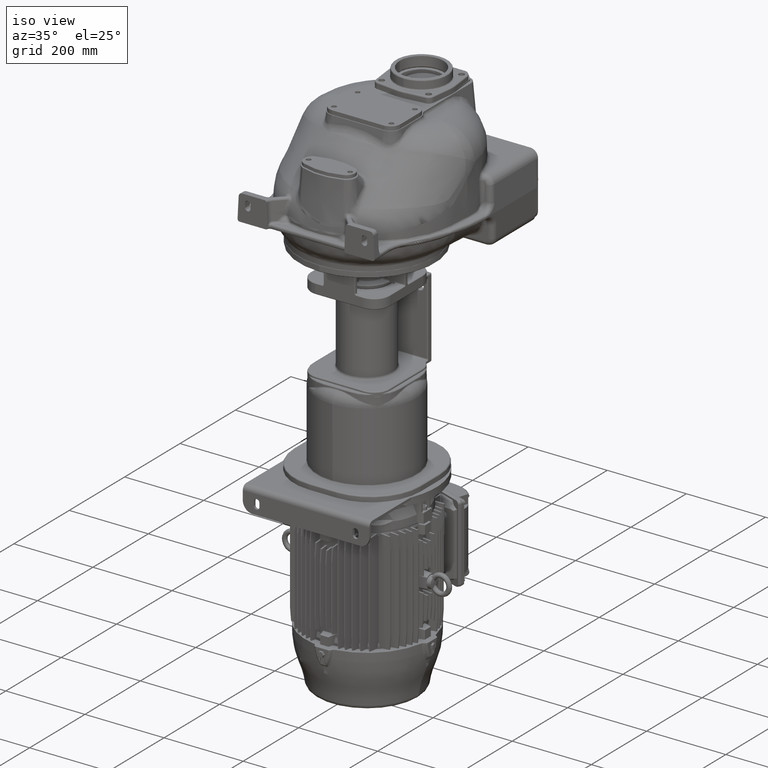
[diagram: clean part render]
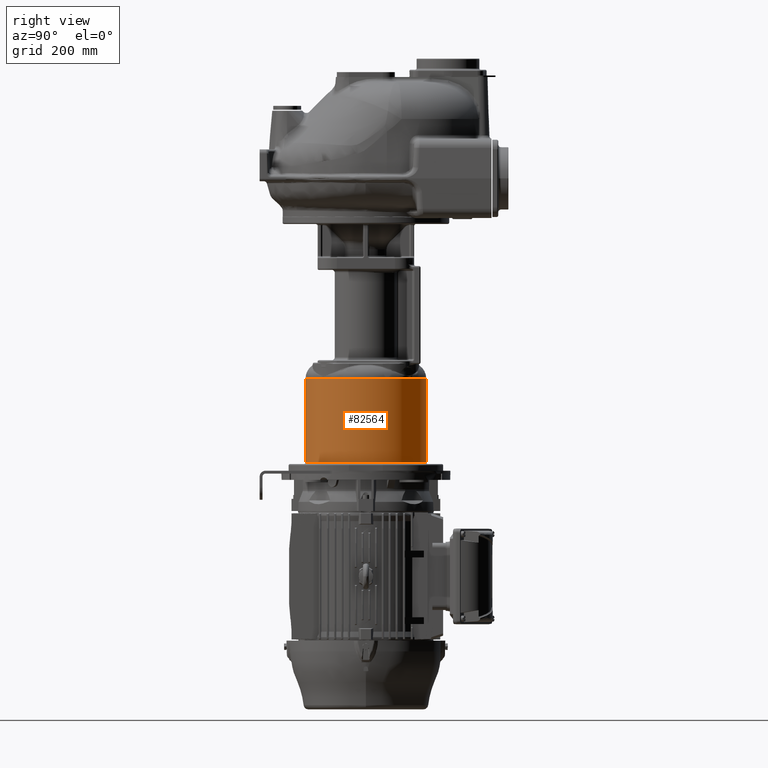
[diagram: tour spotlight — one face highlighted and labeled with its STEP entity id]
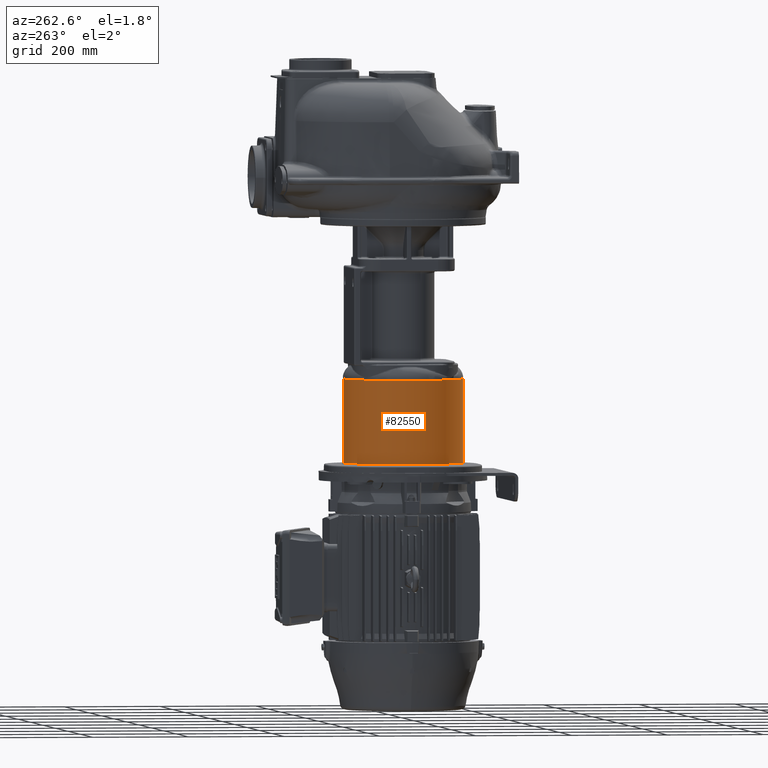
[diagram: tour spotlight — one face highlighted and labeled with its STEP entity id]
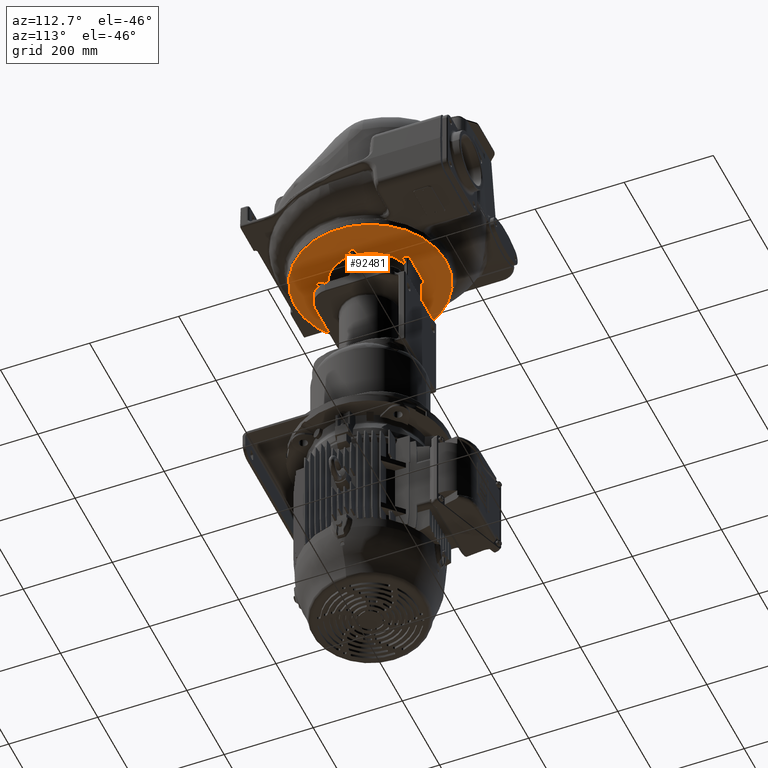
[diagram: tour spotlight — one face highlighted and labeled with its STEP entity id]
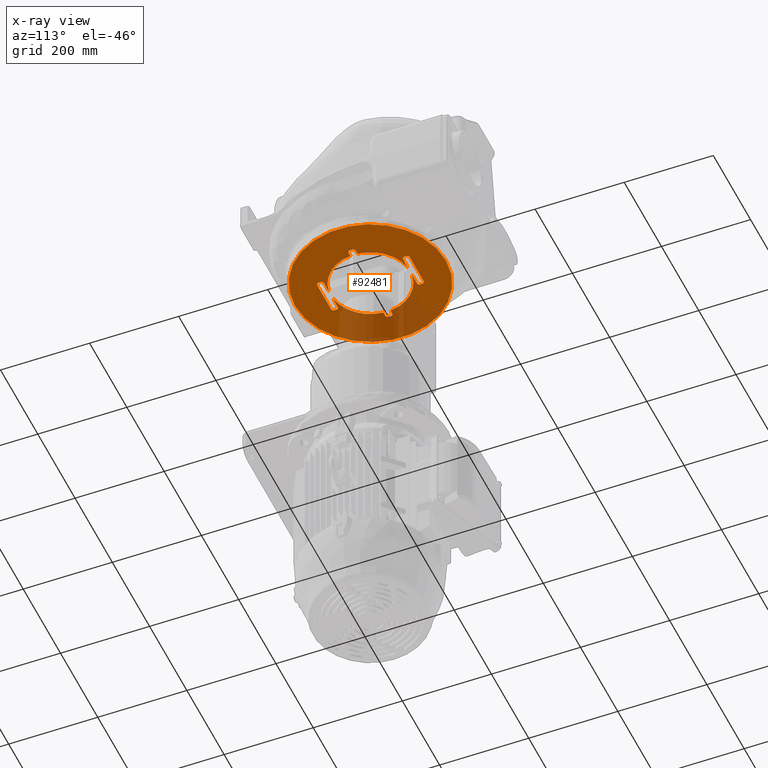
[diagram: x-ray of the same camera — body ghosted, this tour face saturated]
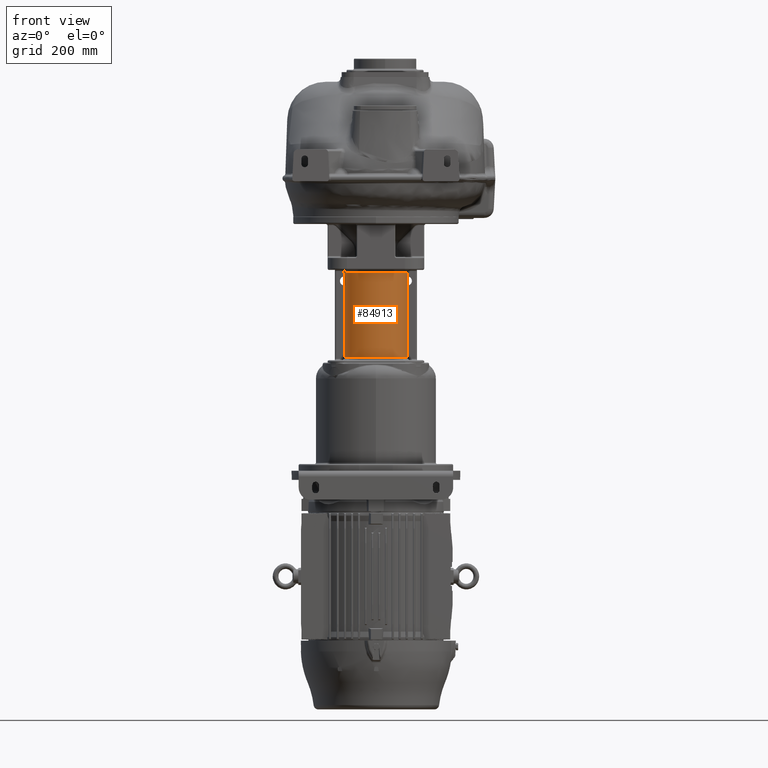
[diagram: tour spotlight — one face highlighted and labeled with its STEP entity id]
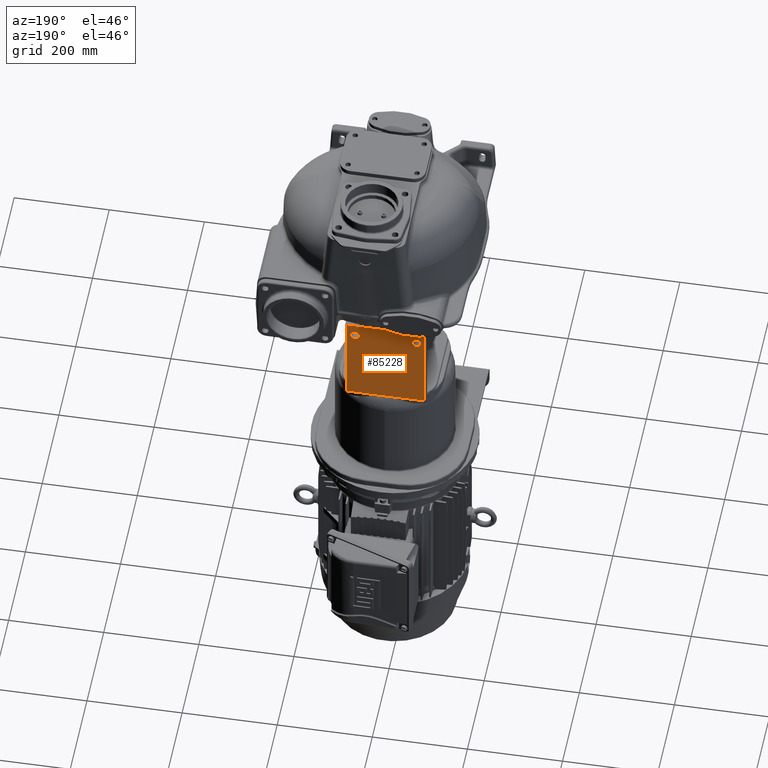
[diagram: tour spotlight — one face highlighted and labeled with its STEP entity id]
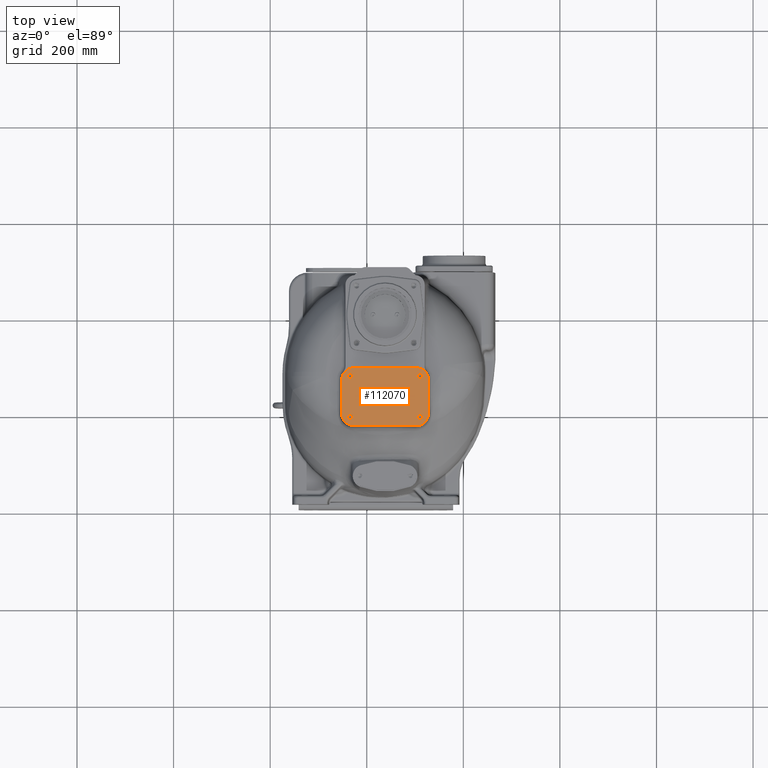
[diagram: tour spotlight — one face highlighted and labeled with its STEP entity id]
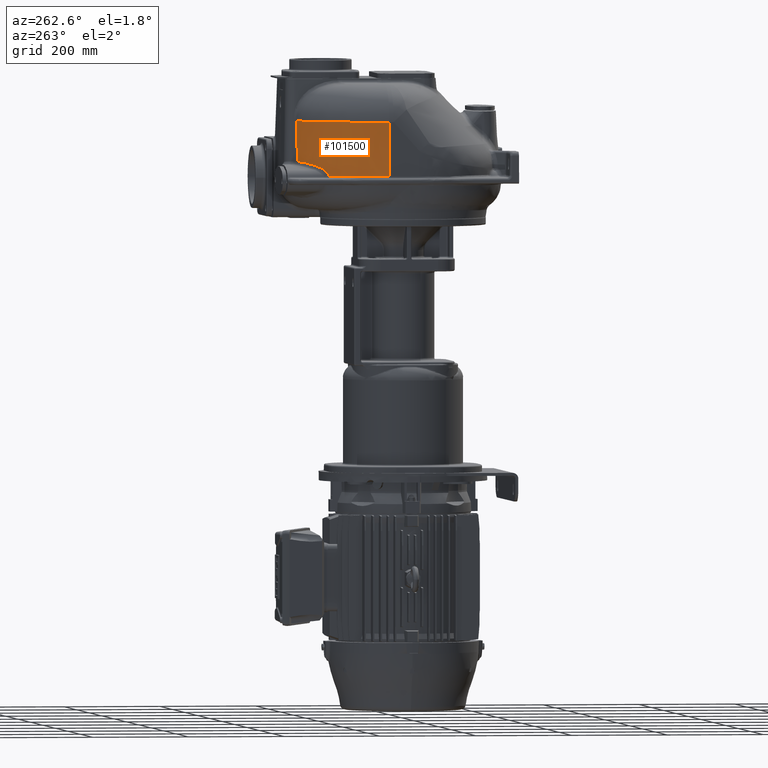
[diagram: tour spotlight — one face highlighted and labeled with its STEP entity id]
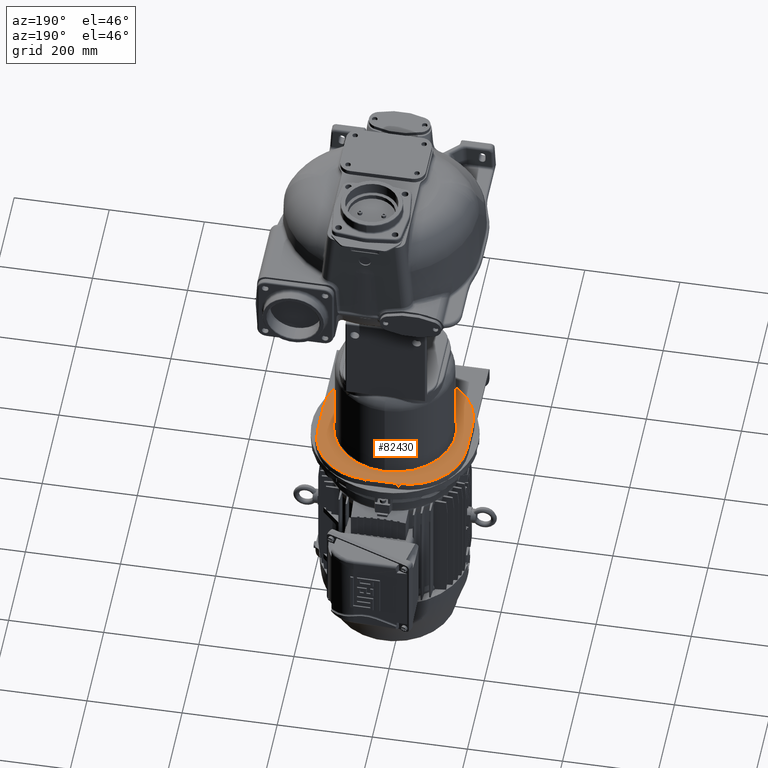
[diagram: tour spotlight — one face highlighted and labeled with its STEP entity id]
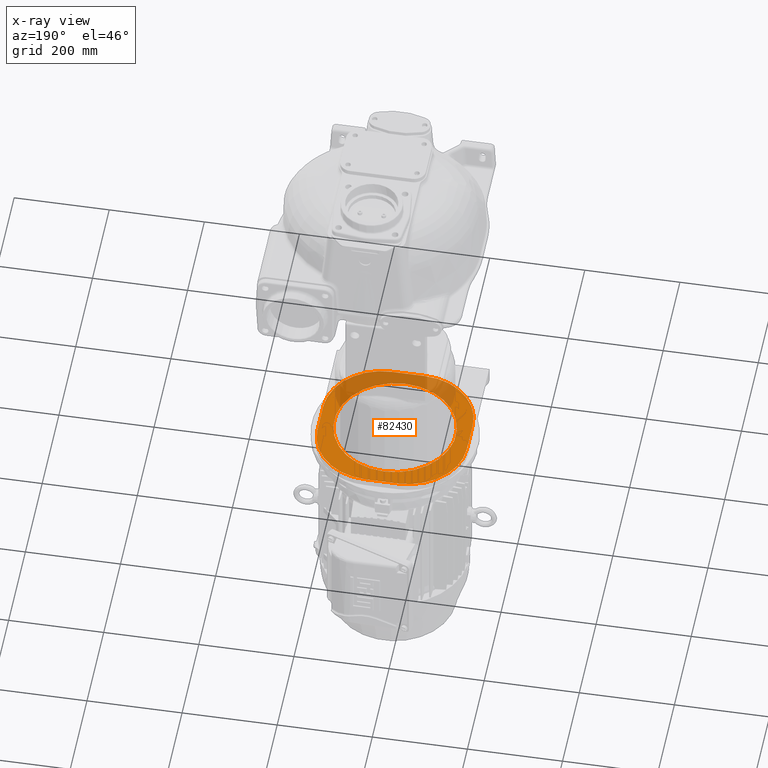
[diagram: x-ray of the same camera — body ghosted, this tour face saturated]
A machine part: a face-by-face anatomy tour. The part has 2953 B-rep faces; the first image is the clean iso view, then the 8 largest visible faces are spotlighted one at a time (largest first), each with its STEP entity span.

Face 1 — right view, entity #82564. In plain terms, the highlighted cylindrical surface (partial cylindrical patch) has radius 125 mm, axis along (0, 0, 1).
Definition (entity closure, byte-faithful):
#24245=DIRECTION('',(0.E0,0.E0,-1.E0));
#24246=VECTOR('',#24245,1.74E2);
#24247=CARTESIAN_POINT('',(1.9E1,9.5E1,-4.145E2));
#24248=LINE('',#24247,#24246);
#24259=CARTESIAN_POINT('',(1.9E1,2.2E2,-5.885E2));
#24260=DIRECTION('',(0.E0,0.E0,-1.E0));
#24261=DIRECTION('',(0.E0,1.E0,0.E0));
#24262=AXIS2_PLACEMENT_3D('',#24259,#24260,#24261);
#24264=CARTESIAN_POINT('',(1.9E1,2.2E2,-4.145E2));
#24265=DIRECTION('',(0.E0,0.E0,1.E0));
#24266=DIRECTION('',(0.E0,-1.E0,0.E0));
#24267=AXIS2_PLACEMENT_3D('',#24264,#24265,#24266);
#24269=DIRECTION('',(0.E0,0.E0,1.E0));
#24270=VECTOR('',#24269,1.74E2);
#24271=CARTESIAN_POINT('',(1.9E1,3.45E2,-5.885E2));
#24272=LINE('',#24271,#24270);
#42105=CARTESIAN_POINT('',(1.9E1,3.45E2,-5.885E2));
#42106=VERTEX_POINT('',#42105);
#42163=CARTESIAN_POINT('',(1.9E1,3.45E2,-4.145E2));
#42164=CARTESIAN_POINT('',(1.9E1,9.5E1,-4.145E2));
#42165=VERTEX_POINT('',#42163);
#42166=VERTEX_POINT('',#42164);
#42167=CARTESIAN_POINT('',(1.9E1,9.5E1,-5.885E2));
#42168=VERTEX_POINT('',#42167);
#82551=CARTESIAN_POINT('',(1.9E1,2.2E2,-6.209E2));
#82552=DIRECTION('',(0.E0,0.E0,1.E0));
#82553=DIRECTION('',(0.E0,1.E0,0.E0));
#82554=AXIS2_PLACEMENT_3D('',#82551,#82552,#82553);
#82555=CYLINDRICAL_SURFACE('',#82554,1.25E2);
#82557=ORIENTED_EDGE('',*,*,#82556,.T.);
#82558=ORIENTED_EDGE('',*,*,#82541,.F.);
#82560=ORIENTED_EDGE('',*,*,#82559,.T.);
#82561=ORIENTED_EDGE('',*,*,#82544,.F.);
#82562=EDGE_LOOP('',(#82557,#82558,#82560,#82561));
#82563=FACE_OUTER_BOUND('',#82562,.F.);
#82564=ADVANCED_FACE('',(#82563),#82555,.T.);
#24263=CIRCLE('',#24262,1.25E2);
#24268=CIRCLE('',#24267,1.25E2);
#82541=EDGE_CURVE('',#42166,#42168,#24248,.T.);
#82544=EDGE_CURVE('',#42106,#42165,#24272,.T.);
#82556=EDGE_CURVE('',#42106,#42168,#24263,.T.);
#82559=EDGE_CURVE('',#42166,#42165,#24268,.T.);

Face 2 — auxiliary view, entity #82550. In plain terms, the highlighted cylindrical surface (partial cylindrical patch) has radius 125 mm, axis along (0, 0, 1).
Definition (entity closure, byte-faithful):
#24245=DIRECTION('',(0.E0,0.E0,-1.E0));
#24246=VECTOR('',#24245,1.74E2);
#24247=CARTESIAN_POINT('',(1.9E1,9.5E1,-4.145E2));
#24248=LINE('',#24247,#24246);
#24249=CARTESIAN_POINT('',(1.9E1,2.2E2,-5.885E2));
#24250=DIRECTION('',(0.E0,0.E0,-1.E0));
#24251=DIRECTION('',(0.E0,-1.E0,0.E0));
#24252=AXIS2_PLACEMENT_3D('',#24249,#24250,#24251);
#24254=CARTESIAN_POINT('',(1.9E1,2.2E2,-4.145E2));
#24255=DIRECTION('',(0.E0,0.E0,1.E0));
#24256=DIRECTION('',(0.E0,1.E0,0.E0));
#24257=AXIS2_PLACEMENT_3D('',#24254,#24255,#24256);
#24269=DIRECTION('',(0.E0,0.E0,1.E0));
#24270=VECTOR('',#24269,1.74E2);
#24271=CARTESIAN_POINT('',(1.9E1,3.45E2,-5.885E2));
#24272=LINE('',#24271,#24270);
#42105=CARTESIAN_POINT('',(1.9E1,3.45E2,-5.885E2));
#42106=VERTEX_POINT('',#42105);
#42163=CARTESIAN_POINT('',(1.9E1,3.45E2,-4.145E2));
#42164=CARTESIAN_POINT('',(1.9E1,9.5E1,-4.145E2));
#42165=VERTEX_POINT('',#42163);
#42166=VERTEX_POINT('',#42164);
#42167=CARTESIAN_POINT('',(1.9E1,9.5E1,-5.885E2));
#42168=VERTEX_POINT('',#42167);
#82536=CARTESIAN_POINT('',(1.9E1,2.2E2,-6.209E2));
#82537=DIRECTION('',(0.E0,0.E0,1.E0));
#82538=DIRECTION('',(0.E0,1.E0,0.E0));
#82539=AXIS2_PLACEMENT_3D('',#82536,#82537,#82538);
#82540=CYLINDRICAL_SURFACE('',#82539,1.25E2);
#82542=ORIENTED_EDGE('',*,*,#82541,.T.);
#82543=ORIENTED_EDGE('',*,*,#82526,.T.);
#82545=ORIENTED_EDGE('',*,*,#82544,.T.);
#82547=ORIENTED_EDGE('',*,*,#82546,.T.);
#82548=EDGE_LOOP('',(#82542,#82543,#82545,#82547));
#82549=FACE_OUTER_BOUND('',#82548,.F.);
#82550=ADVANCED_FACE('',(#82549),#82540,.T.);
#24253=CIRCLE('',#24252,1.25E2);
#24258=CIRCLE('',#24257,1.25E2);
#82526=EDGE_CURVE('',#42168,#42106,#24253,.T.);
#82541=EDGE_CURVE('',#42166,#42168,#24248,.T.);
#82544=EDGE_CURVE('',#42106,#42165,#24272,.T.);
#82546=EDGE_CURVE('',#42165,#42166,#24258,.T.);

Face 3 — auxiliary view, entity #92481. An x-ray twin of the same camera follows (body ghosted, this face saturated) — the face is partly hidden behind the body. In plain terms, the highlighted planar face has unit normal (0, 0, -1).
Definition (entity closure, byte-faithful):
#26903=CARTESIAN_POINT('',(1.23E2,2.23E2,-9.450000025830E1));
#26904=CARTESIAN_POINT('',(1.229999996273E2,2.234606043981E2,
-9.450000110772E1));
#26905=CARTESIAN_POINT('',(1.228466955805E2,2.243737201377E2,
-9.449999948166E1));
#26906=CARTESIAN_POINT('',(1.220636472387E2,2.258355061609E2,
-9.450000015261E1));
#26907=CARTESIAN_POINT('',(1.207645786039E2,2.270420026033E2,
-9.449999990789E1));
#26908=CARTESIAN_POINT('',(1.190927926250E2,2.278256375356E2,
-9.450000021583E1));
#26909=CARTESIAN_POINT('',(1.177380951153E2,2.280000018019E2,
-9.449999955780E1));
#26910=CARTESIAN_POINT('',(1.17E2,2.28E2,-9.450000001253E1));
#26926=DIRECTION('',(0.E0,1.E0,-1.020490003611E-8));
#26927=VECTOR('',#26926,6.000000000004E0);
#26928=CARTESIAN_POINT('',(1.23E2,2.17E2,-9.450000019707E1));
#26929=LINE('',#26928,#26927);
#26935=CARTESIAN_POINT('',(1.17E2,2.12E2,-9.449999999950E1));
#26936=CARTESIAN_POINT('',(1.177382236731E2,2.119999999239E2,
-9.450000156859E1));
#26937=CARTESIAN_POINT('',(1.190930987344E2,2.121744329910E2,
-9.449999924330E1));
#26938=CARTESIAN_POINT('',(1.207648550828E2,2.129581868893E2,
-9.450000029555E1));
#26939=CARTESIAN_POINT('',(1.220637727012E2,2.141646926545E2,
-9.449999957449E1));
#26940=CARTESIAN_POINT('',(1.228466652585E2,2.156262502605E2,
-9.450000140650E1));
#26941=CARTESIAN_POINT('',(1.230000023533E2,2.165393767790E2,
-9.449999700184E1));
#26942=CARTESIAN_POINT('',(1.23E2,2.17E2,-9.450000019707E1));
#27064=CARTESIAN_POINT('',(5.700000000001E1,1.16E2,-9.450000019666E1));
#27065=CARTESIAN_POINT('',(5.746062316057E1,1.159999976473E2,
-9.449999700572E1));
#27066=CARTESIAN_POINT('',(5.837374958282E1,1.161533346992E2,
-9.450000140465E1));
#27067=CARTESIAN_POINT('',(5.983530715676E1,1.169362271532E2,
-9.449999957516E1));
#27068=CARTESIAN_POINT('',(6.104181289181E1,1.182351446570E2,
-9.450000029470E1));
#27069=CARTESIAN_POINT('',(6.182556681466E1,1.199069005683E2,
-9.449999924603E1));
#27070=CARTESIAN_POINT('',(6.200000007647E1,1.212617760292E2,
-9.450000156280E1));
#27071=CARTESIAN_POINT('',(6.2E1,1.22E2,-9.449999999952E1));
#27092=CARTESIAN_POINT('',(-2.4E1,1.22E2,-9.450000001268E1));
#27093=CARTESIAN_POINT('',(-2.400000180242E1,1.212619049131E2,
-9.449999956122E1));
#27094=CARTESIAN_POINT('',(-2.382563755235E1,1.199072074520E2,
-9.450000021424E1));
#27095=CARTESIAN_POINT('',(-2.304200266575E1,1.182354215124E2,
-9.449999990833E1));
#27096=CARTESIAN_POINT('',(-2.183550635717E1,1.169363529117E2,
-9.450000015242E1));
#27097=CARTESIAN_POINT('',(-2.037372022364E1,1.161533044321E2,
-9.449999948198E1));
#27098=CARTESIAN_POINT('',(-1.946060443322E1,1.160000003725E2,
-9.450000110709E1));
#27099=CARTESIAN_POINT('',(-1.9E1,1.16E2,-9.450000025886E1));
#27120=CARTESIAN_POINT('',(-1.9E1,1.26E2,-9.45E1));
#27121=DIRECTION('',(0.E0,0.E0,1.E0));
#27122=DIRECTION('',(0.E0,1.E0,0.E0));
#27123=AXIS2_PLACEMENT_3D('',#27120,#27121,#27122);
#27321=CARTESIAN_POINT('',(-8.5E1,2.17E2,-9.450000025830E1));
#27322=CARTESIAN_POINT('',(-8.499999962728E1,2.165393956019E2,
-9.450000110772E1));
#27323=CARTESIAN_POINT('',(-8.484669558049E1,2.156262798623E2,
-9.449999948166E1));
#27324=CARTESIAN_POINT('',(-8.406364723868E1,2.141644938391E2,
-9.450000015261E1));
#27325=CARTESIAN_POINT('',(-8.276457860392E1,2.129579973967E2,
-9.449999990789E1));
#27326=CARTESIAN_POINT('',(-8.109279262505E1,2.121743624644E2,
-9.450000021583E1));
#27327=CARTESIAN_POINT('',(-7.973809511529E1,2.119999981981E2,
-9.449999955780E1));
#27328=CARTESIAN_POINT('',(-7.9E1,2.12E2,-9.450000001253E1));
#27344=DIRECTION('',(0.E0,-1.E0,-1.020490240458E-8));
#27345=VECTOR('',#27344,6.000000000004E0);
#27346=CARTESIAN_POINT('',(-8.5E1,2.23E2,-9.450000019707E1));
#27347=LINE('',#27346,#27345);
#27353=CARTESIAN_POINT('',(-7.9E1,2.28E2,-9.449999999950E1));
#27354=CARTESIAN_POINT('',(-7.973822367314E1,2.280000000761E2,
-9.450000156859E1));
#27355=CARTESIAN_POINT('',(-8.109309873435E1,2.278255670090E2,
-9.449999924330E1));
#27356=CARTESIAN_POINT('',(-8.276485508279E1,2.270418131107E2,
-9.450000029555E1));
#27357=CARTESIAN_POINT('',(-8.406377270123E1,2.258353073455E2,
-9.449999957449E1));
#27358=CARTESIAN_POINT('',(-8.484666525848E1,2.243737497395E2,
-9.450000140650E1));
#27359=CARTESIAN_POINT('',(-8.500000235325E1,2.234606232210E2,
-9.449999700184E1));
#27360=CARTESIAN_POINT('',(-8.5E1,2.23E2,-9.450000019707E1));
#27482=CARTESIAN_POINT('',(-1.900000000001E1,3.24E2,-9.450000019666E1));
#27483=CARTESIAN_POINT('',(-1.946062316058E1,3.240000023527E2,
-9.449999700572E1));
#27484=CARTESIAN_POINT('',(-2.037374958283E1,3.238466653008E2,
-9.450000140465E1));
#27485=CARTESIAN_POINT('',(-2.183530715677E1,3.230637728468E2,
-9.449999957516E1));
#27486=CARTESIAN_POINT('',(-2.304181289182E1,3.217648553430E2,
-9.450000029470E1));
#27487=CARTESIAN_POINT('',(-2.382556681466E1,3.200930994317E2,
-9.449999924603E1));
#27488=CARTESIAN_POINT('',(-2.400000007647E1,3.187382239708E2,
-9.450000156280E1));
#27489=CARTESIAN_POINT('',(-2.4E1,3.18E2,-9.449999999952E1));
#27510=CARTESIAN_POINT('',(6.2E1,3.18E2,-9.450000001268E1));
#27511=CARTESIAN_POINT('',(6.200000180242E1,3.187380950869E2,
-9.449999956122E1));
#27512=CARTESIAN_POINT('',(6.182563755235E1,3.200927925480E2,
-9.450000021424E1));
#27513=CARTESIAN_POINT('',(6.104200266576E1,3.217645784876E2,
-9.449999990833E1));
#27514=CARTESIAN_POINT('',(5.983550635719E1,3.230636470883E2,
-9.450000015242E1));
#27515=CARTESIAN_POINT('',(5.837372022365E1,3.238466955679E2,
-9.449999948198E1));
#27516=CARTESIAN_POINT('',(5.746060443322E1,3.239999996275E2,
-9.450000110709E1));
#27517=CARTESIAN_POINT('',(5.7E1,3.24E2,-9.450000025886E1));
#27538=CARTESIAN_POINT('',(5.7E1,3.14E2,-9.45E1));
#27539=DIRECTION('',(0.E0,0.E0,1.E0));
#27540=DIRECTION('',(0.E0,-1.E0,0.E0));
#27541=AXIS2_PLACEMENT_3D('',#27538,#27539,#27540);
#27578=CARTESIAN_POINT('',(1.075953847673E2,2.28E2,-9.450000062425E1));
#27580=CARTESIAN_POINT('',(3.2E1,3.080008079577E2,-9.450000060055E1));
#28108=CARTESIAN_POINT('',(-1.9E1,3.14E2,-9.45E1));
#28109=DIRECTION('',(0.E0,0.E0,1.E0));
#28110=DIRECTION('',(-1.E0,0.E0,0.E0));
#28111=AXIS2_PLACEMENT_3D('',#28108,#28109,#28110);
#28118=CARTESIAN_POINT('',(1.9E1,2.2E2,-9.45E1));
#28119=DIRECTION('',(0.E0,0.E0,1.E0));
#28120=DIRECTION('',(0.E0,1.E0,0.E0));
#28121=AXIS2_PLACEMENT_3D('',#28118,#28119,#28120);
#28123=CARTESIAN_POINT('',(1.9E1,2.2E2,-9.45E1));
#28124=DIRECTION('',(0.E0,0.E0,1.E0));
#28125=DIRECTION('',(0.E0,-1.E0,0.E0));
#28126=AXIS2_PLACEMENT_3D('',#28123,#28124,#28125);
#28128=DIRECTION('',(0.E0,-1.E0,3.169020601490E-9));
#28129=VECTOR('',#28128,4.E0);
#28130=CARTESIAN_POINT('',(6.2E1,3.18E2,-9.450000001268E1));
#28131=LINE('',#28130,#28129);
#28132=DIRECTION('',(-1.E0,-4.456524038687E-12,0.E0));
#28133=VECTOR('',#28132,2.5E1);
#28134=CARTESIAN_POINT('',(5.7E1,3.09E2,-9.45E1));
#28135=LINE('',#28134,#28133);
#28136=DIRECTION('',(-1.422234577096E-14,-9.999999999998E-1,
-6.010330469188E-7));
#28137=VECTOR('',#28136,9.991920421609E-1);
#28138=CARTESIAN_POINT('',(3.2E1,3.089999999999E2,-9.45E1));
#28139=LINE('',#28138,#28137);
#28140=CARTESIAN_POINT('',(1.9E1,2.2E2,-9.45E1));
#28141=DIRECTION('',(0.E0,0.E0,1.E0));
#28142=DIRECTION('',(9.959478845862E-1,8.993225888606E-2,0.E0));
#28143=AXIS2_PLACEMENT_3D('',#28140,#28141,#28142);
#28145=DIRECTION('',(1.E0,0.E0,6.504391323047E-8));
#28146=VECTOR('',#28145,9.404615232689E0);
#28147=CARTESIAN_POINT('',(1.075953847673E2,2.28E2,-9.450000062425E1));
#28148=LINE('',#28147,#28146);
#28149=DIRECTION('',(1.E0,0.E0,1.162008130140E-7));
#28150=VECTOR('',#28149,9.404615233640E0);
#28151=CARTESIAN_POINT('',(1.075953847664E2,2.12E2,-9.450000109233E1));
#28152=LINE('',#28151,#28150);
#28153=CARTESIAN_POINT('',(1.9E1,2.2E2,-9.45E1));
#28154=DIRECTION('',(0.E0,0.E0,1.E0));
#28155=DIRECTION('',(1.461399207220E-1,-9.892639301882E-1,0.E0));
#28156=AXIS2_PLACEMENT_3D('',#28153,#28154,#28155);
#28158=DIRECTION('',(0.E0,-9.999999999998E-1,6.010464300970E-7));
#28159=VECTOR('',#28158,9.991920422427E-1);
#28160=CARTESIAN_POINT('',(3.2E1,1.319991920424E2,-9.450000060056E1));
#28161=LINE('',#28160,#28159);
#28162=DIRECTION('',(1.E0,-4.455387170310E-12,0.E0));
#28163=VECTOR('',#28162,2.5E1);
#28164=CARTESIAN_POINT('',(3.2E1,1.310000000001E2,-9.45E1));
#28165=LINE('',#28164,#28163);
#28166=DIRECTION('',(0.E0,-1.E0,1.208420030707E-10));
#28167=VECTOR('',#28166,4.E0);
#28168=CARTESIAN_POINT('',(6.2E1,1.26E2,-9.45E1));
#28169=LINE('',#28168,#28167);
#28170=DIRECTION('',(-1.E0,0.E0,-8.184410809893E-10));
#28171=VECTOR('',#28170,7.6E1);
#28172=CARTESIAN_POINT('',(5.700000000001E1,1.16E2,-9.450000019666E1));
#28173=LINE('',#28172,#28171);
#28174=DIRECTION('',(0.E0,1.E0,3.169020601490E-9));
#28175=VECTOR('',#28174,4.E0);
#28176=CARTESIAN_POINT('',(-2.4E1,1.22E2,-9.450000001268E1));
#28177=LINE('',#28176,#28175);
#28178=DIRECTION('',(1.E0,4.455387170310E-12,0.E0));
#28179=VECTOR('',#28178,2.5E1);
#28180=CARTESIAN_POINT('',(-1.9E1,1.31E2,-9.45E1));
#28181=LINE('',#28180,#28179);
#28182=DIRECTION('',(0.E0,9.999999999998E-1,-6.010330326964E-7));
#28183=VECTOR('',#28182,9.991920421609E-1);
#28184=CARTESIAN_POINT('',(6.E0,1.310000000001E2,-9.45E1));
#28185=LINE('',#28184,#28183);
#28186=CARTESIAN_POINT('',(1.9E1,2.2E2,-9.45E1));
#28187=DIRECTION('',(0.E0,0.E0,-1.E0));
#28188=DIRECTION('',(-1.461399207214E-1,-9.892639301883E-1,0.E0));
#28189=AXIS2_PLACEMENT_3D('',#28186,#28187,#28188);
#28191=DIRECTION('',(-1.E0,0.E0,6.504391171942E-8));
#28192=VECTOR('',#28191,9.404615232689E0);
#28193=CARTESIAN_POINT('',(-6.959538476731E1,2.12E2,-9.450000062425E1));
#28194=LINE('',#28193,#28192);
#28195=DIRECTION('',(-1.E0,0.E0,1.162008130140E-7));
#28196=VECTOR('',#28195,9.404615233640E0);
#28197=CARTESIAN_POINT('',(-6.959538476636E1,2.28E2,-9.450000109233E1));
#28198=LINE('',#28197,#28196);
#28199=CARTESIAN_POINT('',(1.9E1,2.2E2,-9.45E1));
#28200=DIRECTION('',(0.E0,0.E0,-1.E0));
#28201=DIRECTION('',(-9.959478845858E-1,8.993225889006E-2,0.E0));
#28202=AXIS2_PLACEMENT_3D('',#28199,#28200,#28201);
#28204=DIRECTION('',(0.E0,9.999999999998E-1,6.010464443194E-7));
#28205=VECTOR('',#28204,9.991920422426E-1);
#28206=CARTESIAN_POINT('',(6.E0,3.080008079576E2,-9.450000060056E1));
#28207=LINE('',#28206,#28205);
#28208=DIRECTION('',(-1.E0,4.456524038687E-12,0.E0));
#28209=VECTOR('',#28208,2.5E1);
#28210=CARTESIAN_POINT('',(6.E0,3.089999999999E2,-9.45E1));
#28211=LINE('',#28210,#28209);
#28212=DIRECTION('',(0.E0,1.E0,1.208420030707E-10));
#28213=VECTOR('',#28212,4.E0);
#28214=CARTESIAN_POINT('',(-2.4E1,3.14E2,-9.45E1));
#28215=LINE('',#28214,#28213);
#28216=DIRECTION('',(1.E0,0.E0,-8.184418289291E-10));
#28217=VECTOR('',#28216,7.6E1);
#28218=CARTESIAN_POINT('',(-1.900000000001E1,3.24E2,-9.450000019666E1));
#28219=LINE('',#28218,#28217);
#37350=CARTESIAN_POINT('',(1.075953847664E2,2.12E2,-9.450000109233E1));
#37362=CARTESIAN_POINT('',(3.2E1,1.319991920424E2,-9.450000060056E1));
#37586=CARTESIAN_POINT('',(5.7E1,1.26E2,-9.45E1));
#37587=DIRECTION('',(0.E0,0.E0,1.E0));
#37588=DIRECTION('',(1.E0,0.E0,0.E0));
#37589=AXIS2_PLACEMENT_3D('',#37586,#37587,#37588);
#38178=CARTESIAN_POINT('',(-6.959538476731E1,2.12E2,-9.450000062425E1));
#38180=CARTESIAN_POINT('',(6.E0,1.319991920423E2,-9.450000060055E1));
#38428=CARTESIAN_POINT('',(-6.959538476636E1,2.28E2,-9.450000109233E1));
#38440=CARTESIAN_POINT('',(6.E0,3.080008079576E2,-9.450000060056E1));
#41323=CARTESIAN_POINT('',(1.9E1,3.895E2,-9.45E1));
#41324=CARTESIAN_POINT('',(1.9E1,5.05E1,-9.45E1));
#41325=VERTEX_POINT('',#41323);
#41326=VERTEX_POINT('',#41324);
#41390=VERTEX_POINT('',#38428);
#41421=VERTEX_POINT('',#38440);
#41436=VERTEX_POINT('',#27578);
#41471=VERTEX_POINT('',#27580);
#41488=VERTEX_POINT('',#37350);
#41521=VERTEX_POINT('',#37362);
#41536=VERTEX_POINT('',#38178);
#41567=VERTEX_POINT('',#38180);
#41606=CARTESIAN_POINT('',(-1.9E1,1.31E2,-9.45E1));
#41607=VERTEX_POINT('',#41606);
#41608=CARTESIAN_POINT('',(-2.4E1,1.26E2,-9.45E1));
#41609=VERTEX_POINT('',#41608);
#41622=CARTESIAN_POINT('',(5.7E1,3.09E2,-9.45E1));
#41623=VERTEX_POINT('',#41622);
#41624=CARTESIAN_POINT('',(6.2E1,3.14E2,-9.45E1));
#41625=VERTEX_POINT('',#41624);
#41638=CARTESIAN_POINT('',(6.2E1,1.26E2,-9.45E1));
#41639=VERTEX_POINT('',#41638);
#41640=CARTESIAN_POINT('',(5.7E1,1.31E2,-9.45E1));
#41641=VERTEX_POINT('',#41640);
#41675=CARTESIAN_POINT('',(1.169999992287E2,2.12E2,-9.45E1));
#41677=VERTEX_POINT('',#41675);
#41678=CARTESIAN_POINT('',(1.23E2,2.169999997396E2,-9.45E1));
#41679=VERTEX_POINT('',#41678);
#41680=CARTESIAN_POINT('',(5.700000025964E1,1.16E2,-9.45E1));
#41681=VERTEX_POINT('',#41680);
#41683=CARTESIAN_POINT('',(6.2E1,1.220000007717E2,-9.45E1));
#41685=VERTEX_POINT('',#41683);
#41714=CARTESIAN_POINT('',(1.23E2,2.229999999641E2,-9.45E1));
#41715=VERTEX_POINT('',#41714);
#41717=CARTESIAN_POINT('',(1.169999994244E2,2.28E2,-9.45E1));
#41719=VERTEX_POINT('',#41717);
#41721=CARTESIAN_POINT('',(6.2E1,3.179999994283E2,-9.45E1));
#41723=VERTEX_POINT('',#41721);
#41724=CARTESIAN_POINT('',(5.699999996620E1,3.24E2,-9.45E1));
#41725=VERTEX_POINT('',#41724);
#41734=CARTESIAN_POINT('',(-2.4E1,3.14E2,-9.45E1));
#41735=VERTEX_POINT('',#41734);
#41736=CARTESIAN_POINT('',(-1.9E1,3.09E2,-9.45E1));
#41737=VERTEX_POINT('',#41736);
#41771=CARTESIAN_POINT('',(-7.899999922869E1,2.28E2,-9.45E1));
#41773=VERTEX_POINT('',#41771);
#41774=CARTESIAN_POINT('',(-8.5E1,2.230000002604E2,-9.45E1));
#41775=VERTEX_POINT('',#41774);
#41776=CARTESIAN_POINT('',(-1.900000025964E1,3.24E2,-9.45E1));
#41777=VERTEX_POINT('',#41776);
#41779=CARTESIAN_POINT('',(-2.4E1,3.179999992283E2,-9.45E1));
#41781=VERTEX_POINT('',#41779);
#41810=CARTESIAN_POINT('',(-8.5E1,2.170000000359E2,-9.45E1));
#41811=VERTEX_POINT('',#41810);
#41813=CARTESIAN_POINT('',(-7.899999942441E1,2.12E2,-9.45E1));
#41815=VERTEX_POINT('',#41813);
#41817=CARTESIAN_POINT('',(-2.4E1,1.220000005717E2,-9.45E1));
#41819=VERTEX_POINT('',#41817);
#41820=CARTESIAN_POINT('',(-1.899999996620E1,1.16E2,-9.45E1));
#41821=VERTEX_POINT('',#41820);
#41837=CARTESIAN_POINT('',(6.E0,3.089999999999E2,-9.45E1));
#41838=VERTEX_POINT('',#41837);
#41839=CARTESIAN_POINT('',(3.2E1,3.089999999999E2,-9.45E1));
#41840=VERTEX_POINT('',#41839);
#41841=CARTESIAN_POINT('',(3.2E1,1.310000000001E2,-9.45E1));
#41842=VERTEX_POINT('',#41841);
#41843=CARTESIAN_POINT('',(6.E0,1.310000000001E2,-9.45E1));
#41844=VERTEX_POINT('',#41843);
#92420=CARTESIAN_POINT('',(1.9E1,2.2E2,-9.45E1));
#92421=DIRECTION('',(0.E0,0.E0,-1.E0));
#92422=DIRECTION('',(0.E0,1.E0,0.E0));
#92423=AXIS2_PLACEMENT_3D('',#92420,#92421,#92422);
#92424=PLANE('',#92423);
#92426=ORIENTED_EDGE('',*,*,#92425,.T.);
#92428=ORIENTED_EDGE('',*,*,#92427,.T.);
#92429=EDGE_LOOP('',(#92426,#92428));
#92430=FACE_OUTER_BOUND('',#92429,.F.);
#92431=ORIENTED_EDGE('',*,*,#91230,.T.);
#92432=ORIENTED_EDGE('',*,*,#91244,.F.);
#92433=ORIENTED_EDGE('',*,*,#91260,.T.);
#92434=ORIENTED_EDGE('',*,*,#91284,.T.);
#92435=ORIENTED_EDGE('',*,*,#91356,.F.);
#92437=ORIENTED_EDGE('',*,*,#92436,.T.);
#92438=ORIENTED_EDGE('',*,*,#88989,.F.);
#92439=ORIENTED_EDGE('',*,*,#89004,.F.);
#92440=ORIENTED_EDGE('',*,*,#89206,.F.);
#92441=ORIENTED_EDGE('',*,*,#89224,.F.);
#92443=ORIENTED_EDGE('',*,*,#92442,.F.);
#92445=ORIENTED_EDGE('',*,*,#92444,.T.);
#92447=ORIENTED_EDGE('',*,*,#92446,.T.);
#92449=ORIENTED_EDGE('',*,*,#92448,.F.);
#92451=ORIENTED_EDGE('',*,*,#92450,.T.);
#92452=ORIENTED_EDGE('',*,*,#89552,.F.);
#92453=ORIENTED_EDGE('',*,*,#89569,.T.);
#92454=ORIENTED_EDGE('',*,*,#89769,.F.);
#92455=ORIENTED_EDGE('',*,*,#89784,.T.);
#92456=ORIENTED_EDGE('',*,*,#89799,.F.);
#92457=ORIENTED_EDGE('',*,*,#89817,.T.);
#92459=ORIENTED_EDGE('',*,*,#92458,.T.);
#92461=ORIENTED_EDGE('',*,*,#92460,.T.);
#92463=ORIENTED_EDGE('',*,*,#92462,.T.);
#92464=ORIENTED_EDGE('',*,*,#90435,.F.);
#92465=ORIENTED_EDGE('',*,*,#90450,.F.);
#92466=ORIENTED_EDGE('',*,*,#90652,.F.);
#92467=ORIENTED_EDGE('',*,*,#90670,.F.);
#92469=ORIENTED_EDGE('',*,*,#92468,.T.);
#92471=ORIENTED_EDGE('',*,*,#92470,.T.);
#92473=ORIENTED_EDGE('',*,*,#92472,.T.);
#92474=ORIENTED_EDGE('',*,*,#92412,.F.);
#92475=ORIENTED_EDGE('',*,*,#92401,.T.);
#92476=ORIENTED_EDGE('',*,*,#90998,.F.);
#92477=ORIENTED_EDGE('',*,*,#91013,.T.);
#92478=ORIENTED_EDGE('',*,*,#91215,.F.);
#92479=EDGE_LOOP('',(#92431,#92432,#92433,#92434,#92435,#92437,#92438,#92439,
#92440,#92441,#92443,#92445,#92447,#92449,#92451,#92452,#92453,#92454,#92455,
#92456,#92457,#92459,#92461,#92463,#92464,#92465,#92466,#92467,#92469,#92471,
#92473,#92474,#92475,#92476,#92477,#92478));
#92480=FACE_BOUND('',#92479,.F.);
#92481=ADVANCED_FACE('',(#92430,#92480),#92424,.T.);
#26911=B_SPLINE_CURVE_WITH_KNOTS('',3,(#26903,#26904,#26905,#26906,#26907,
#26908,#26909,#26910),.UNSPECIFIED.,.F.,.F.,(4,1,1,1,1,4),(0.E0,2.E-1,4.E-1,
6.E-1,8.E-1,1.E0),.UNSPECIFIED.);
#26943=B_SPLINE_CURVE_WITH_KNOTS('',3,(#26935,#26936,#26937,#26938,#26939,
#26940,#26941,#26942),.UNSPECIFIED.,.F.,.F.,(4,1,1,1,1,4),(0.E0,2.E-1,4.E-1,
6.E-1,8.E-1,1.E0),.UNSPECIFIED.);
#27072=B_SPLINE_CURVE_WITH_KNOTS('',3,(#27064,#27065,#27066,#27067,#27068,
#27069,#27070,#27071),.UNSPECIFIED.,.F.,.F.,(4,1,1,1,1,4),(0.E0,2.E-1,4.E-1,
6.E-1,8.E-1,1.E0),.UNSPECIFIED.);
#27100=B_SPLINE_CURVE_WITH_KNOTS('',3,(#27092,#27093,#27094,#27095,#27096,
#27097,#27098,#27099),.UNSPECIFIED.,.F.,.F.,(4,1,1,1,1,4),(0.E0,2.E-1,4.E-1,
6.E-1,8.E-1,1.E0),.UNSPECIFIED.);
#27124=CIRCLE('',#27123,5.E0);
#27329=B_SPLINE_CURVE_WITH_KNOTS('',3,(#27321,#27322,#27323,#27324,#27325,
#27326,#27327,#27328),.UNSPECIFIED.,.F.,.F.,(4,1,1,1,1,4),(0.E0,2.E-1,4.E-1,
6.E-1,8.E-1,1.E0),.UNSPECIFIED.);
#27361=B_SPLINE_CURVE_WITH_KNOTS('',3,(#27353,#27354,#27355,#27356,#27357,
#27358,#27359,#27360),.UNSPECIFIED.,.F.,.F.,(4,1,1,1,1,4),(0.E0,2.E-1,4.E-1,
6.E-1,8.E-1,1.E0),.UNSPECIFIED.);
#27490=B_SPLINE_CURVE_WITH_KNOTS('',3,(#27482,#27483,#27484,#27485,#27486,
#27487,#27488,#27489),.UNSPECIFIED.,.F.,.F.,(4,1,1,1,1,4),(0.E0,2.E-1,4.E-1,
6.E-1,8.E-1,1.E0),.UNSPECIFIED.);
#27518=B_SPLINE_CURVE_WITH_KNOTS('',3,(#27510,#27511,#27512,#27513,#27514,
#27515,#27516,#27517),.UNSPECIFIED.,.F.,.F.,(4,1,1,1,1,4),(0.E0,2.E-1,4.E-1,
6.E-1,8.E-1,1.E0),.UNSPECIFIED.);
#27542=CIRCLE('',#27541,5.E0);
#28112=CIRCLE('',#28111,5.E0);
#28122=CIRCLE('',#28121,1.695E2);
#28127=CIRCLE('',#28126,1.695E2);
#28144=CIRCLE('',#28143,8.895584412272E1);
#28157=CIRCLE('',#28156,8.895584412272E1);
#28190=CIRCLE('',#28189,8.895584412272E1);
#28203=CIRCLE('',#28202,8.895584412272E1);
#37590=CIRCLE('',#37589,5.E0);
#88989=EDGE_CURVE('',#41715,#41719,#26911,.T.);
#89004=EDGE_CURVE('',#41679,#41715,#26929,.T.);
#89206=EDGE_CURVE('',#41677,#41679,#26943,.T.);
#89224=EDGE_CURVE('',#41488,#41677,#28152,.T.);
#89552=EDGE_CURVE('',#41681,#41685,#27072,.T.);
#89569=EDGE_CURVE('',#41681,#41821,#28173,.T.);
#89769=EDGE_CURVE('',#41819,#41821,#27100,.T.);
#89784=EDGE_CURVE('',#41819,#41609,#28177,.T.);
#89799=EDGE_CURVE('',#41607,#41609,#27124,.T.);
#89817=EDGE_CURVE('',#41607,#41844,#28181,.T.);
#90435=EDGE_CURVE('',#41811,#41815,#27329,.T.);
#90450=EDGE_CURVE('',#41775,#41811,#27347,.T.);
#90652=EDGE_CURVE('',#41773,#41775,#27361,.T.);
#90670=EDGE_CURVE('',#41390,#41773,#28198,.T.);
#90998=EDGE_CURVE('',#41777,#41781,#27490,.T.);
#91013=EDGE_CURVE('',#41777,#41725,#28219,.T.);
#91215=EDGE_CURVE('',#41723,#41725,#27518,.T.);
#91230=EDGE_CURVE('',#41723,#41625,#28131,.T.);
#91244=EDGE_CURVE('',#41623,#41625,#27542,.T.);
#91260=EDGE_CURVE('',#41623,#41840,#28135,.T.);
#91284=EDGE_CURVE('',#41840,#41471,#28139,.T.);
#91356=EDGE_CURVE('',#41436,#41471,#28144,.T.);
#92401=EDGE_CURVE('',#41735,#41781,#28215,.T.);
#92412=EDGE_CURVE('',#41735,#41737,#28112,.T.);
#92425=EDGE_CURVE('',#41325,#41326,#28122,.T.);
#92427=EDGE_CURVE('',#41326,#41325,#28127,.T.);
#92436=EDGE_CURVE('',#41436,#41719,#28148,.T.);
#92442=EDGE_CURVE('',#41521,#41488,#28157,.T.);
#92444=EDGE_CURVE('',#41521,#41842,#28161,.T.);
#92446=EDGE_CURVE('',#41842,#41641,#28165,.T.);
#92448=EDGE_CURVE('',#41639,#41641,#37590,.T.);
#92450=EDGE_CURVE('',#41639,#41685,#28169,.T.);
#92458=EDGE_CURVE('',#41844,#41567,#28185,.T.);
#92460=EDGE_CURVE('',#41567,#41536,#28190,.T.);
#92462=EDGE_CURVE('',#41536,#41815,#28194,.T.);
#92468=EDGE_CURVE('',#41390,#41421,#28203,.T.);
#92470=EDGE_CURVE('',#41421,#41838,#28207,.T.);
#92472=EDGE_CURVE('',#41838,#41737,#28211,.T.);

Face 4 — front view, entity #84913. In plain terms, the highlighted cylindrical surface (edge-blend (fillet) strip) has radius 65 mm, axis along (0, 0, -1).
Definition (entity closure, byte-faithful):
#24673=CARTESIAN_POINT('',(1.230882352917E1,2.846546839583E2,-3.705E2));
#24675=CARTESIAN_POINT('',(1.9E1,2.2E2,-3.705E2));
#24676=DIRECTION('',(0.E0,0.E0,1.E0));
#24677=DIRECTION('',(-1.029411764706E-1,9.946874454756E-1,0.E0));
#24678=AXIS2_PLACEMENT_3D('',#24675,#24676,#24677);
#25348=CARTESIAN_POINT('',(2.569117647082E1,2.846546839581E2,-1.955E2));
#25350=CARTESIAN_POINT('',(1.9E1,2.2E2,-1.955E2));
#25351=DIRECTION('',(0.E0,0.E0,-1.E0));
#25352=DIRECTION('',(1.029411764706E-1,9.946874454756E-1,0.E0));
#25353=AXIS2_PLACEMENT_3D('',#25350,#25351,#25352);
#25411=DIRECTION('',(7.783488139726E-14,7.526068657171E-13,-1.E0));
#25412=VECTOR('',#25411,1.75E2);
#25413=CARTESIAN_POINT('',(2.569117647082E1,2.846546839581E2,-1.955E2));
#25414=LINE('',#25413,#25412);
#25415=DIRECTION('',(7.778412834471E-14,-7.522820461808E-13,1.E0));
#25416=VECTOR('',#25415,1.75E2);
#25417=CARTESIAN_POINT('',(1.230882352917E1,2.846546839583E2,-3.705E2));
#25418=LINE('',#25417,#25416);
#41988=VERTEX_POINT('',#25348);
#41989=CARTESIAN_POINT('',(2.569117647083E1,2.846546839583E2,-3.705E2));
#41990=VERTEX_POINT('',#41989);
#42003=VERTEX_POINT('',#24673);
#42004=CARTESIAN_POINT('',(1.230882352918E1,2.846546839581E2,-1.955E2));
#42005=VERTEX_POINT('',#42004);
#84901=CARTESIAN_POINT('',(1.9E1,2.2E2,-1.6145E2));
#84902=DIRECTION('',(0.E0,0.E0,-1.E0));
#84903=DIRECTION('',(0.E0,-1.E0,0.E0));
#84904=AXIS2_PLACEMENT_3D('',#84901,#84902,#84903);
#84905=CYLINDRICAL_SURFACE('',#84904,6.5E1);
#84906=ORIENTED_EDGE('',*,*,#84893,.T.);
#84907=ORIENTED_EDGE('',*,*,#83133,.F.);
#84909=ORIENTED_EDGE('',*,*,#84908,.T.);
#84910=ORIENTED_EDGE('',*,*,#84703,.F.);
#84911=EDGE_LOOP('',(#84906,#84907,#84909,#84910));
#84912=FACE_OUTER_BOUND('',#84911,.F.);
#84913=ADVANCED_FACE('',(#84912),#84905,.T.);
#24679=CIRCLE('',#24678,6.5E1);
#25354=CIRCLE('',#25353,6.5E1);
#83133=EDGE_CURVE('',#42003,#41990,#24679,.T.);
#84703=EDGE_CURVE('',#41988,#42005,#25354,.T.);
#84893=EDGE_CURVE('',#41988,#41990,#25414,.T.);
#84908=EDGE_CURVE('',#42003,#42005,#25418,.T.);

Face 5 — auxiliary view, entity #85228. In plain terms, the highlighted planar face has unit normal (0, 1, 0).
Definition (entity closure, byte-faithful):
#25603=DIRECTION('',(-1.E0,0.E0,0.E0));
#25604=VECTOR('',#25603,1.64E2);
#25605=CARTESIAN_POINT('',(1.01E2,3.33E2,-3.815E2));
#25606=LINE('',#25605,#25604);
#25607=CARTESIAN_POINT('',(1.01E2,3.33E2,-1.845E2));
#25608=CARTESIAN_POINT('',(1.01E2,3.33E2,-2.501666666667E2));
#25609=CARTESIAN_POINT('',(1.01E2,3.33E2,-3.158333333333E2));
#25610=CARTESIAN_POINT('',(1.01E2,3.33E2,-3.815E2));
#25612=DIRECTION('',(1.E0,0.E0,0.E0));
#25613=VECTOR('',#25612,1.64E2);
#25614=CARTESIAN_POINT('',(-6.3E1,3.33E2,-1.845E2));
#25615=LINE('',#25614,#25613);
#25616=CARTESIAN_POINT('',(-6.3E1,3.33E2,-3.815E2));
#25617=CARTESIAN_POINT('',(-6.3E1,3.33E2,-3.158333333333E2));
#25618=CARTESIAN_POINT('',(-6.3E1,3.33E2,-2.501666666667E2));
#25619=CARTESIAN_POINT('',(-6.3E1,3.33E2,-1.845E2));
#25621=CARTESIAN_POINT('',(-4.6E1,3.33E2,-2.125E2));
#25622=DIRECTION('',(0.E0,1.E0,0.E0));
#25623=DIRECTION('',(0.E0,0.E0,1.E0));
#25624=AXIS2_PLACEMENT_3D('',#25621,#25622,#25623);
#25626=CARTESIAN_POINT('',(-4.6E1,3.33E2,-2.125E2));
#25627=DIRECTION('',(0.E0,1.E0,0.E0));
#25628=DIRECTION('',(0.E0,0.E0,-1.E0));
#25629=AXIS2_PLACEMENT_3D('',#25626,#25627,#25628);
#25631=CARTESIAN_POINT('',(8.4E1,3.33E2,-2.125E2));
#25632=DIRECTION('',(0.E0,1.E0,0.E0));
#25633=DIRECTION('',(0.E0,0.E0,1.E0));
#25634=AXIS2_PLACEMENT_3D('',#25631,#25632,#25633);
#25636=CARTESIAN_POINT('',(8.4E1,3.33E2,-2.125E2));
#25637=DIRECTION('',(0.E0,1.E0,0.E0));
#25638=DIRECTION('',(0.E0,0.E0,-1.E0));
#25639=AXIS2_PLACEMENT_3D('',#25636,#25637,#25638);
#41921=CARTESIAN_POINT('',(1.01E2,3.33E2,-3.815E2));
#41922=CARTESIAN_POINT('',(-6.3E1,3.33E2,-3.815E2));
#41923=VERTEX_POINT('',#41921);
#41924=VERTEX_POINT('',#41922);
#41929=CARTESIAN_POINT('',(-6.3E1,3.33E2,-1.845E2));
#41930=CARTESIAN_POINT('',(1.01E2,3.33E2,-1.845E2));
#41931=VERTEX_POINT('',#41929);
#41932=VERTEX_POINT('',#41930);
#42077=CARTESIAN_POINT('',(-4.6E1,3.33E2,-2.03E2));
#42078=CARTESIAN_POINT('',(-4.6E1,3.33E2,-2.22E2));
#42079=VERTEX_POINT('',#42077);
#42080=VERTEX_POINT('',#42078);
#42081=CARTESIAN_POINT('',(8.4E1,3.33E2,-2.03E2));
#42082=CARTESIAN_POINT('',(8.4E1,3.33E2,-2.22E2));
#42083=VERTEX_POINT('',#42081);
#42084=VERTEX_POINT('',#42082);
#85204=CARTESIAN_POINT('',(1.9E1,3.33E2,-2.795E2));
#85205=DIRECTION('',(0.E0,1.E0,0.E0));
#85206=DIRECTION('',(0.E0,0.E0,-1.E0));
#85207=AXIS2_PLACEMENT_3D('',#85204,#85205,#85206);
#85208=PLANE('',#85207);
#85209=ORIENTED_EDGE('',*,*,#84248,.F.);
#85210=ORIENTED_EDGE('',*,*,#85194,.F.);
#85211=ORIENTED_EDGE('',*,*,#85089,.F.);
#85213=ORIENTED_EDGE('',*,*,#85212,.F.);
#85214=EDGE_LOOP('',(#85209,#85210,#85211,#85213));
#85215=FACE_OUTER_BOUND('',#85214,.F.);
#85217=ORIENTED_EDGE('',*,*,#85216,.T.);
#85219=ORIENTED_EDGE('',*,*,#85218,.T.);
#85220=EDGE_LOOP('',(#85217,#85219));
#85221=FACE_BOUND('',#85220,.F.);
#85223=ORIENTED_EDGE('',*,*,#85222,.T.);
#85225=ORIENTED_EDGE('',*,*,#85224,.T.);
#85226=EDGE_LOOP('',(#85223,#85225));
#85227=FACE_BOUND('',#85226,.F.);
#85228=ADVANCED_FACE('',(#85215,#85221,#85227),#85208,.T.);
#25611=B_SPLINE_CURVE_WITH_KNOTS('',3,(#25607,#25608,#25609,#25610),
.UNSPECIFIED.,.F.,.F.,(4,4),(0.E0,1.E0),.UNSPECIFIED.);
#25620=B_SPLINE_CURVE_WITH_KNOTS('',3,(#25616,#25617,#25618,#25619),
.UNSPECIFIED.,.F.,.F.,(4,4),(0.E0,1.E0),.UNSPECIFIED.);
#25625=CIRCLE('',#25624,9.5E0);
#25630=CIRCLE('',#25629,9.5E0);
#25635=CIRCLE('',#25634,9.5E0);
#25640=CIRCLE('',#25639,9.5E0);
#84248=EDGE_CURVE('',#41923,#41924,#25606,.T.);
#85089=EDGE_CURVE('',#41931,#41932,#25615,.T.);
#85194=EDGE_CURVE('',#41932,#41923,#25611,.T.);
#85212=EDGE_CURVE('',#41924,#41931,#25620,.T.);
#85216=EDGE_CURVE('',#42079,#42080,#25625,.T.);
#85218=EDGE_CURVE('',#42080,#42079,#25630,.T.);
#85222=EDGE_CURVE('',#42083,#42084,#25635,.T.);
#85224=EDGE_CURVE('',#42084,#42083,#25640,.T.);

Face 6 — top view, entity #112070. In plain terms, the highlighted planar face has unit normal (0, 0, 1).
Definition (entity closure, byte-faithful):
#36088=CARTESIAN_POINT('',(-2.7E1,2.55E2,2.2E2));
#36089=DIRECTION('',(0.E0,0.E0,1.E0));
#36090=DIRECTION('',(0.E0,1.E0,0.E0));
#36091=AXIS2_PLACEMENT_3D('',#36088,#36089,#36090);
#36093=DIRECTION('',(-1.E0,0.E0,0.E0));
#36094=VECTOR('',#36093,1.3E2);
#36095=CARTESIAN_POINT('',(1.03E2,2.8E2,2.2E2));
#36096=LINE('',#36095,#36094);
#36097=CARTESIAN_POINT('',(1.03E2,2.55E2,2.2E2));
#36098=DIRECTION('',(0.E0,0.E0,1.E0));
#36099=DIRECTION('',(1.E0,0.E0,0.E0));
#36100=AXIS2_PLACEMENT_3D('',#36097,#36098,#36099);
#36102=DIRECTION('',(0.E0,1.E0,0.E0));
#36103=VECTOR('',#36102,7.E1);
#36104=CARTESIAN_POINT('',(1.28E2,1.85E2,2.2E2));
#36105=LINE('',#36104,#36103);
#36106=CARTESIAN_POINT('',(1.03E2,1.85E2,2.2E2));
#36107=DIRECTION('',(0.E0,0.E0,1.E0));
#36108=DIRECTION('',(0.E0,-1.E0,0.E0));
#36109=AXIS2_PLACEMENT_3D('',#36106,#36107,#36108);
#36111=DIRECTION('',(1.E0,0.E0,0.E0));
#36112=VECTOR('',#36111,1.3E2);
#36113=CARTESIAN_POINT('',(-2.7E1,1.6E2,2.2E2));
#36114=LINE('',#36113,#36112);
#36115=CARTESIAN_POINT('',(-2.7E1,1.85E2,2.2E2));
#36116=DIRECTION('',(0.E0,0.E0,1.E0));
#36117=DIRECTION('',(-1.E0,0.E0,0.E0));
#36118=AXIS2_PLACEMENT_3D('',#36115,#36116,#36117);
#36120=DIRECTION('',(0.E0,-1.E0,0.E0));
#36121=VECTOR('',#36120,7.E1);
#36122=CARTESIAN_POINT('',(-5.2E1,2.55E2,2.2E2));
#36123=LINE('',#36122,#36121);
#36124=CARTESIAN_POINT('',(1.105E2,2.625E2,2.2E2));
#36125=DIRECTION('',(0.E0,0.E0,-1.E0));
#36126=DIRECTION('',(1.E0,0.E0,0.E0));
#36127=AXIS2_PLACEMENT_3D('',#36124,#36125,#36126);
#36129=CARTESIAN_POINT('',(1.105E2,2.625E2,2.2E2));
#36130=DIRECTION('',(0.E0,0.E0,-1.E0));
#36131=DIRECTION('',(-1.E0,0.E0,0.E0));
#36132=AXIS2_PLACEMENT_3D('',#36129,#36130,#36131);
#36134=CARTESIAN_POINT('',(1.105E2,1.775E2,2.2E2));
#36135=DIRECTION('',(0.E0,0.E0,-1.E0));
#36136=DIRECTION('',(1.E0,0.E0,0.E0));
#36137=AXIS2_PLACEMENT_3D('',#36134,#36135,#36136);
#36139=CARTESIAN_POINT('',(1.105E2,1.775E2,2.2E2));
#36140=DIRECTION('',(0.E0,0.E0,-1.E0));
#36141=DIRECTION('',(-1.E0,0.E0,0.E0));
#36142=AXIS2_PLACEMENT_3D('',#36139,#36140,#36141);
#36144=CARTESIAN_POINT('',(-3.45E1,2.625E2,2.2E2));
#36145=DIRECTION('',(0.E0,0.E0,-1.E0));
#36146=DIRECTION('',(1.E0,0.E0,0.E0));
#36147=AXIS2_PLACEMENT_3D('',#36144,#36145,#36146);
#36149=CARTESIAN_POINT('',(-3.45E1,2.625E2,2.2E2));
#36150=DIRECTION('',(0.E0,0.E0,-1.E0));
#36151=DIRECTION('',(-1.E0,0.E0,0.E0));
#36152=AXIS2_PLACEMENT_3D('',#36149,#36150,#36151);
#36154=CARTESIAN_POINT('',(-3.45E1,1.775E2,2.2E2));
#36155=DIRECTION('',(0.E0,0.E0,-1.E0));
#36156=DIRECTION('',(1.E0,0.E0,0.E0));
#36157=AXIS2_PLACEMENT_3D('',#36154,#36155,#36156);
#36159=CARTESIAN_POINT('',(-3.45E1,1.775E2,2.2E2));
#36160=DIRECTION('',(0.E0,0.E0,-1.E0));
#36161=DIRECTION('',(-1.E0,0.E0,0.E0));
#36162=AXIS2_PLACEMENT_3D('',#36159,#36160,#36161);
#41211=CARTESIAN_POINT('',(1.1625E2,2.625E2,2.2E2));
#41212=CARTESIAN_POINT('',(1.0475E2,2.625E2,2.2E2));
#41213=VERTEX_POINT('',#41211);
#41214=VERTEX_POINT('',#41212);
#41215=CARTESIAN_POINT('',(1.1625E2,1.775E2,2.2E2));
#41216=CARTESIAN_POINT('',(1.0475E2,1.775E2,2.2E2));
#41217=VERTEX_POINT('',#41215);
#41218=VERTEX_POINT('',#41216);
#41219=CARTESIAN_POINT('',(-2.875E1,2.625E2,2.2E2));
#41220=CARTESIAN_POINT('',(-4.025E1,2.625E2,2.2E2));
#41221=VERTEX_POINT('',#41219);
#41222=VERTEX_POINT('',#41220);
#41223=CARTESIAN_POINT('',(-2.875E1,1.775E2,2.2E2));
#41224=CARTESIAN_POINT('',(-4.025E1,1.775E2,2.2E2));
#41225=VERTEX_POINT('',#41223);
#41226=VERTEX_POINT('',#41224);
#41227=CARTESIAN_POINT('',(-2.7E1,2.8E2,2.2E2));
#41228=CARTESIAN_POINT('',(-5.2E1,2.55E2,2.2E2));
#41229=VERTEX_POINT('',#41227);
#41230=VERTEX_POINT('',#41228);
#41231=CARTESIAN_POINT('',(-5.2E1,1.85E2,2.2E2));
#41232=VERTEX_POINT('',#41231);
#41233=CARTESIAN_POINT('',(-2.7E1,1.6E2,2.2E2));
#41234=VERTEX_POINT('',#41233);
#41235=CARTESIAN_POINT('',(1.03E2,1.6E2,2.2E2));
#41236=VERTEX_POINT('',#41235);
#41237=CARTESIAN_POINT('',(1.28E2,1.85E2,2.2E2));
#41238=VERTEX_POINT('',#41237);
#41239=CARTESIAN_POINT('',(1.28E2,2.55E2,2.2E2));
#41240=VERTEX_POINT('',#41239);
#41241=CARTESIAN_POINT('',(1.03E2,2.8E2,2.2E2));
#41242=VERTEX_POINT('',#41241);
#112031=CARTESIAN_POINT('',(3.8E1,2.2E2,2.2E2));
#112032=DIRECTION('',(0.E0,0.E0,1.E0));
#112033=DIRECTION('',(1.E0,0.E0,0.E0));
#112034=AXIS2_PLACEMENT_3D('',#112031,#112032,#112033);
#112035=PLANE('',#112034);
#112036=ORIENTED_EDGE('',*,*,#111926,.F.);
#112037=ORIENTED_EDGE('',*,*,#111941,.F.);
#112038=ORIENTED_EDGE('',*,*,#111955,.F.);
#112039=ORIENTED_EDGE('',*,*,#111969,.F.);
#112040=ORIENTED_EDGE('',*,*,#111983,.F.);
#112041=ORIENTED_EDGE('',*,*,#111997,.F.);
#112042=ORIENTED_EDGE('',*,*,#112011,.F.);
#112043=ORIENTED_EDGE('',*,*,#112024,.F.);
#112044=EDGE_LOOP('',(#112036,#112037,#112038,#112039,#112040,#112041,#112042,
#112043));
#112045=FACE_OUTER_BOUND('',#112044,.F.);
#112047=ORIENTED_EDGE('',*,*,#112046,.F.);
#112049=ORIENTED_EDGE('',*,*,#112048,.F.);
#112050=EDGE_LOOP('',(#112047,#112049));
#112051=FACE_BOUND('',#112050,.F.);
#112053=ORIENTED_EDGE('',*,*,#112052,.F.);
#112055=ORIENTED_EDGE('',*,*,#112054,.F.);
#112056=EDGE_LOOP('',(#112053,#112055));
#112057=FACE_BOUND('',#112056,.F.);
#112059=ORIENTED_EDGE('',*,*,#112058,.F.);
#112061=ORIENTED_EDGE('',*,*,#112060,.F.);
#112062=EDGE_LOOP('',(#112059,#112061));
#112063=FACE_BOUND('',#112062,.F.);
#112065=ORIENTED_EDGE('',*,*,#112064,.F.);
#112067=ORIENTED_EDGE('',*,*,#112066,.F.);
#112068=EDGE_LOOP('',(#112065,#112067));
#112069=FACE_BOUND('',#112068,.F.);
#112070=ADVANCED_FACE('',(#112045,#112051,#112057,#112063,#112069),#112035,.T.);
#36092=CIRCLE('',#36091,2.5E1);
#36101=CIRCLE('',#36100,2.5E1);
#36110=CIRCLE('',#36109,2.5E1);
#36119=CIRCLE('',#36118,2.5E1);
#36128=CIRCLE('',#36127,5.75E0);
#36133=CIRCLE('',#36132,5.75E0);
#36138=CIRCLE('',#36137,5.75E0);
#36143=CIRCLE('',#36142,5.75E0);
#36148=CIRCLE('',#36147,5.75E0);
#36153=CIRCLE('',#36152,5.75E0);
#36158=CIRCLE('',#36157,5.75E0);
#36163=CIRCLE('',#36162,5.75E0);
#111926=EDGE_CURVE('',#41229,#41230,#36092,.T.);
#111941=EDGE_CURVE('',#41242,#41229,#36096,.T.);
#111955=EDGE_CURVE('',#41240,#41242,#36101,.T.);
#111969=EDGE_CURVE('',#41238,#41240,#36105,.T.);
#111983=EDGE_CURVE('',#41236,#41238,#36110,.T.);
#111997=EDGE_CURVE('',#41234,#41236,#36114,.T.);
#112011=EDGE_CURVE('',#41232,#41234,#36119,.T.);
#112024=EDGE_CURVE('',#41230,#41232,#36123,.T.);
#112046=EDGE_CURVE('',#41213,#41214,#36128,.T.);
#112048=EDGE_CURVE('',#41214,#41213,#36133,.T.);
#112052=EDGE_CURVE('',#41217,#41218,#36138,.T.);
#112054=EDGE_CURVE('',#41218,#41217,#36143,.T.);
#112058=EDGE_CURVE('',#41221,#41222,#36148,.T.);
#112060=EDGE_CURVE('',#41222,#41221,#36153,.T.);
#112064=EDGE_CURVE('',#41225,#41226,#36158,.T.);
#112066=EDGE_CURVE('',#41226,#41225,#36163,.T.);

Face 7 — auxiliary view, entity #101500. In plain terms, the highlighted conical surface has half-angle 2 deg.
Definition (entity closure, byte-faithful):
#31904=CARTESIAN_POINT('',(3.823675415175E1,2.718678243979E2,1.082550251649E1));
#31905=DIRECTION('',(0.E0,0.E0,-1.E0));
#31906=DIRECTION('',(-9.202917602022E-1,3.912327646095E-1,0.E0));
#31907=AXIS2_PLACEMENT_3D('',#31904,#31905,#31906);
#31909=CARTESIAN_POINT('',(-1.099001172186E2,4.151513843552E2,
2.973123959158E1));
#31910=CARTESIAN_POINT('',(-1.120888148280E2,4.129229550286E2,
2.904629345217E1));
#31911=CARTESIAN_POINT('',(-1.160429190323E2,4.087144220803E2,
2.739457803145E1));
#31912=CARTESIAN_POINT('',(-1.208147920655E2,4.033018904877E2,
2.393142475483E1));
#31913=CARTESIAN_POINT('',(-1.245742618216E2,3.988230359307E2,
1.990302349239E1));
#31914=CARTESIAN_POINT('',(-1.273952715675E2,3.953642037146E2,
1.543947486680E1));
#31915=CARTESIAN_POINT('',(-1.287003657611E2,3.937585798449E2,
1.238806120624E1));
#31916=CARTESIAN_POINT('',(-1.292164972312E2,3.931389228066E2,
1.082554798346E1));
#31918=CARTESIAN_POINT('',(-6.277051332414E1,4.511445771626E2,
3.891510814292E1));
#31919=CARTESIAN_POINT('',(-6.798943291856E1,4.482088742827E2,
3.879743891631E1));
#31920=CARTESIAN_POINT('',(-7.854002005111E1,4.416955079927E2,
3.796061007922E1));
#31921=CARTESIAN_POINT('',(-9.434066573037E1,4.298621321641E2,
3.493182900553E1));
#31922=CARTESIAN_POINT('',(-1.047867190963E2,4.203406688787E2,
3.166867454618E1));
#31923=CARTESIAN_POINT('',(-1.099001172186E2,4.151513843552E2,
2.973123959158E1));
#31925=CARTESIAN_POINT('',(-6.277051332414E1,4.511445771626E2,
3.891510814292E1));
#31926=CARTESIAN_POINT('',(-6.196443594065E1,4.512251341572E2,
4.823600469439E1));
#31927=CARTESIAN_POINT('',(-6.034057449460E1,4.513836688453E2,
6.687691670509E1));
#31928=CARTESIAN_POINT('',(-5.787054531062E1,4.516118557777E2,
9.483584735581E1));
#31929=CARTESIAN_POINT('',(-5.620165174534E1,4.517563328778E2,
1.134735167399E2));
#31930=CARTESIAN_POINT('',(-5.536180663218E1,4.518263550529E2,
1.227919597011E2));
#31932=CARTESIAN_POINT('',(3.823675415175E1,2.718678243979E2,1.227919597364E2));
#31933=DIRECTION('',(0.E0,0.E0,1.E0));
#31934=DIRECTION('',(-4.614308309752E-1,8.871761878148E-1,0.E0));
#31935=AXIS2_PLACEMENT_3D('',#31932,#31933,#31934);
#31937=CARTESIAN_POINT('',(3.823675415175E1,2.718678243979E2,9.895805077269E0));
#31938=DIRECTION('',(0.E0,0.E0,-1.E0));
#31939=DIRECTION('',(-1.E0,0.E0,0.E0));
#31940=AXIS2_PLACEMENT_3D('',#31937,#31938,#31939);
#31942=CARTESIAN_POINT('',(-1.609326346051E2,3.274758741686E2,
9.895805077276E0));
#31943=CARTESIAN_POINT('',(-1.600537649837E2,3.306236911112E2,
9.895795836861E0));
#31944=CARTESIAN_POINT('',(-1.581922264027E2,3.366895726490E2,
1.008684294523E1));
#31945=CARTESIAN_POINT('',(-1.551905589541E2,3.450869265982E2,
1.061778809618E1));
#31946=CARTESIAN_POINT('',(-1.530948782472E2,3.502692751753E2,
1.082549180732E1));
#31947=CARTESIAN_POINT('',(-1.520373779433E2,3.527568184674E2,
1.082550254855E1));
#31973=DIRECTION('',(3.489949671322E-2,-4.979618670390E-12,9.993908270187E-1));
#31974=VECTOR('',#31973,1.129649698664E2);
#31975=CARTESIAN_POINT('',(-1.685498523223E2,2.718678243979E2,
9.895805077269E0));
#31976=LINE('',#31975,#31974);
#39829=CARTESIAN_POINT('',(-1.646074317278E2,2.718678243973E2,
1.227919597362E2));
#39831=VERTEX_POINT('',#39829);
#40106=CARTESIAN_POINT('',(-1.520373779443E2,3.527568184678E2,
1.082550251649E1));
#40107=CARTESIAN_POINT('',(-1.292164782341E2,3.931389655243E2,
1.082550251649E1));
#40108=VERTEX_POINT('',#40106);
#40109=VERTEX_POINT('',#40107);
#40157=CARTESIAN_POINT('',(-1.099001172186E2,4.151513843552E2,
2.973123959158E1));
#40159=VERTEX_POINT('',#40157);
#40243=VERTEX_POINT('',#31918);
#40262=VERTEX_POINT('',#31942);
#40264=CARTESIAN_POINT('',(-1.685498523223E2,2.718678243979E2,
9.895805077269E0));
#40265=VERTEX_POINT('',#40264);
#40370=CARTESIAN_POINT('',(-5.536180709768E1,4.518263559479E2,
1.227919597364E2));
#40371=VERTEX_POINT('',#40370);
#101480=CARTESIAN_POINT('',(3.823675415175E1,2.718678243979E2,
6.634388240682E1));
#101481=DIRECTION('',(0.E0,0.E0,-1.E0));
#101482=DIRECTION('',(-1.E0,0.E0,0.E0));
#101483=AXIS2_PLACEMENT_3D('',#101480,#101481,#101482);
#101484=CONICAL_SURFACE('',#101483,2.048153961774E2,2.E0);
#101486=ORIENTED_EDGE('',*,*,#101485,.T.);
#101487=ORIENTED_EDGE('',*,*,#101337,.F.);
#101488=ORIENTED_EDGE('',*,*,#101396,.F.);
#101489=ORIENTED_EDGE('',*,*,#101471,.T.);
#101491=ORIENTED_EDGE('',*,*,#101490,.T.);
#101493=ORIENTED_EDGE('',*,*,#101492,.F.);
#101495=ORIENTED_EDGE('',*,*,#101494,.T.);
#101497=ORIENTED_EDGE('',*,*,#101496,.T.);
#101498=EDGE_LOOP('',(#101486,#101487,#101488,#101489,#101491,#101493,#101495,
#101497));
#101499=FACE_OUTER_BOUND('',#101498,.F.);
#101500=ADVANCED_FACE('',(#101499),#101484,.T.);
#31908=CIRCLE('',#31907,2.067541407241E2);
#31917=B_SPLINE_CURVE_WITH_KNOTS('',3,(#31909,#31910,#31911,#31912,#31913,
#31914,#31915,#31916),.UNSPECIFIED.,.F.,.F.,(4,1,1,1,1,4),(0.E0,2.E-1,4.E-1,
6.E-1,8.E-1,1.E0),.UNSPECIFIED.);
#31924=B_SPLINE_CURVE_WITH_KNOTS('',3,(#31918,#31919,#31920,#31921,#31922,
#31923),.UNSPECIFIED.,.F.,.F.,(4,1,1,4),(0.E0,3.333333333333E-1,
6.666666666667E-1,1.E0),.UNSPECIFIED.);
#31931=B_SPLINE_CURVE_WITH_KNOTS('',3,(#31925,#31926,#31927,#31928,#31929,
#31930),.UNSPECIFIED.,.F.,.F.,(4,1,1,4),(0.E0,3.333333333333E-1,
6.666666666667E-1,1.E0),.UNSPECIFIED.);
#31936=CIRCLE('',#31935,2.028441858807E2);
#31941=CIRCLE('',#31940,2.067866064741E2);
#31948=B_SPLINE_CURVE_WITH_KNOTS('',3,(#31942,#31943,#31944,#31945,#31946,
#31947),.UNSPECIFIED.,.F.,.F.,(4,1,1,4),(0.E0,3.333333333333E-1,
6.666666666667E-1,1.E0),.UNSPECIFIED.);
#101337=EDGE_CURVE('',#40159,#40109,#31917,.T.);
#101396=EDGE_CURVE('',#40243,#40159,#31924,.T.);
#101471=EDGE_CURVE('',#40243,#40371,#31931,.T.);
#101485=EDGE_CURVE('',#40108,#40109,#31908,.T.);
#101490=EDGE_CURVE('',#40371,#39831,#31936,.T.);
#101492=EDGE_CURVE('',#40265,#39831,#31976,.T.);
#101494=EDGE_CURVE('',#40265,#40262,#31941,.T.);
#101496=EDGE_CURVE('',#40262,#40108,#31948,.T.);

Face 8 — auxiliary view, entity #82430. An x-ray twin of the same camera follows (body ghosted, this face saturated) — the face is partly hidden behind the body. In plain terms, the highlighted planar face has unit normal (0, 0, 1).
Definition (entity closure, byte-faithful):
#24159=DIRECTION('',(0.E0,-1.E0,0.E0));
#24160=VECTOR('',#24159,7.E1);
#24161=CARTESIAN_POINT('',(1.76E2,2.55E2,-5.915E2));
#24162=LINE('',#24161,#24160);
#24163=CARTESIAN_POINT('',(5.4E1,1.85E2,-5.915E2));
#24164=DIRECTION('',(0.E0,0.E0,-1.E0));
#24165=DIRECTION('',(1.E0,0.E0,0.E0));
#24166=AXIS2_PLACEMENT_3D('',#24163,#24164,#24165);
#24168=DIRECTION('',(-1.E0,0.E0,0.E0));
#24169=VECTOR('',#24168,7.E1);
#24170=CARTESIAN_POINT('',(5.4E1,6.3E1,-5.915E2));
#24171=LINE('',#24170,#24169);
#24172=CARTESIAN_POINT('',(-1.6E1,1.85E2,-5.915E2));
#24173=DIRECTION('',(0.E0,0.E0,-1.E0));
#24174=DIRECTION('',(0.E0,-1.E0,0.E0));
#24175=AXIS2_PLACEMENT_3D('',#24172,#24173,#24174);
#24177=DIRECTION('',(0.E0,1.E0,0.E0));
#24178=VECTOR('',#24177,7.E1);
#24179=CARTESIAN_POINT('',(-1.38E2,1.85E2,-5.915E2));
#24180=LINE('',#24179,#24178);
#24181=CARTESIAN_POINT('',(-1.6E1,2.55E2,-5.915E2));
#24182=DIRECTION('',(0.E0,0.E0,-1.E0));
#24183=DIRECTION('',(-1.E0,0.E0,0.E0));
#24184=AXIS2_PLACEMENT_3D('',#24181,#24182,#24183);
#24186=DIRECTION('',(1.E0,0.E0,0.E0));
#24187=VECTOR('',#24186,7.E1);
#24188=CARTESIAN_POINT('',(-1.6E1,3.77E2,-5.915E2));
#24189=LINE('',#24188,#24187);
#24190=CARTESIAN_POINT('',(5.4E1,2.55E2,-5.915E2));
#24191=DIRECTION('',(0.E0,0.E0,-1.E0));
#24192=DIRECTION('',(2.218990019054E-14,1.E0,0.E0));
#24193=AXIS2_PLACEMENT_3D('',#24190,#24191,#24192);
#24195=CARTESIAN_POINT('',(1.9E1,2.2E2,-5.915E2));
#24196=DIRECTION('',(0.E0,0.E0,-1.E0));
#24197=DIRECTION('',(0.E0,-1.E0,0.E0));
#24198=AXIS2_PLACEMENT_3D('',#24195,#24196,#24197);
#24200=CARTESIAN_POINT('',(1.9E1,2.2E2,-5.915E2));
#24201=DIRECTION('',(0.E0,0.E0,-1.E0));
#24202=DIRECTION('',(0.E0,1.E0,0.E0));
#24203=AXIS2_PLACEMENT_3D('',#24200,#24201,#24202);
#42101=CARTESIAN_POINT('',(1.9E1,9.2E1,-5.915E2));
#42102=CARTESIAN_POINT('',(1.9E1,3.48E2,-5.915E2));
#42103=VERTEX_POINT('',#42101);
#42104=VERTEX_POINT('',#42102);
#42131=CARTESIAN_POINT('',(1.76E2,2.55E2,-5.915E2));
#42132=CARTESIAN_POINT('',(1.76E2,1.85E2,-5.915E2));
#42133=VERTEX_POINT('',#42131);
#42134=VERTEX_POINT('',#42132);
#42139=CARTESIAN_POINT('',(5.4E1,3.77E2,-5.915E2));
#42140=VERTEX_POINT('',#42139);
#42143=CARTESIAN_POINT('',(-1.6E1,3.77E2,-5.915E2));
#42144=VERTEX_POINT('',#42143);
#42147=CARTESIAN_POINT('',(-1.38E2,2.55E2,-5.915E2));
#42148=VERTEX_POINT('',#42147);
#42151=CARTESIAN_POINT('',(-1.38E2,1.85E2,-5.915E2));
#42152=VERTEX_POINT('',#42151);
#42155=CARTESIAN_POINT('',(-1.6E1,6.3E1,-5.915E2));
#42156=VERTEX_POINT('',#42155);
#42159=CARTESIAN_POINT('',(5.4E1,6.3E1,-5.915E2));
#42160=VERTEX_POINT('',#42159);
#82402=CARTESIAN_POINT('',(1.9E1,2.2E2,-5.915E2));
#82403=DIRECTION('',(0.E0,0.E0,1.E0));
#82404=DIRECTION('',(0.E0,-1.E0,0.E0));
#82405=AXIS2_PLACEMENT_3D('',#82402,#82403,#82404);
#82406=PLANE('',#82405);
#82408=ORIENTED_EDGE('',*,*,#82407,.T.);
#82410=ORIENTED_EDGE('',*,*,#82409,.T.);
#82412=ORIENTED_EDGE('',*,*,#82411,.T.);
#82414=ORIENTED_EDGE('',*,*,#82413,.T.);
#82416=ORIENTED_EDGE('',*,*,#82415,.T.);
#82418=ORIENTED_EDGE('',*,*,#82417,.T.);
#82419=ORIENTED_EDGE('',*,*,#82392,.T.);
#82421=ORIENTED_EDGE('',*,*,#82420,.T.);
#82422=EDGE_LOOP('',(#82408,#82410,#82412,#82414,#82416,#82418,#82419,#82421));
#82423=FACE_OUTER_BOUND('',#82422,.F.);
#82425=ORIENTED_EDGE('',*,*,#82424,.F.);
#82427=ORIENTED_EDGE('',*,*,#82426,.F.);
#82428=EDGE_LOOP('',(#82425,#82427));
#82429=FACE_BOUND('',#82428,.F.);
#82430=ADVANCED_FACE('',(#82423,#82429),#82406,.T.);
#24167=CIRCLE('',#24166,1.22E2);
#24176=CIRCLE('',#24175,1.22E2);
#24185=CIRCLE('',#24184,1.22E2);
#24194=CIRCLE('',#24193,1.22E2);
#24199=CIRCLE('',#24198,1.28E2);
#24204=CIRCLE('',#24203,1.28E2);
#82392=EDGE_CURVE('',#42144,#42140,#24189,.T.);
#82407=EDGE_CURVE('',#42133,#42134,#24162,.T.);
#82409=EDGE_CURVE('',#42134,#42160,#24167,.T.);
#82411=EDGE_CURVE('',#42160,#42156,#24171,.T.);
#82413=EDGE_CURVE('',#42156,#42152,#24176,.T.);
#82415=EDGE_CURVE('',#42152,#42148,#24180,.T.);
#82417=EDGE_CURVE('',#42148,#42144,#24185,.T.);
#82420=EDGE_CURVE('',#42140,#42133,#24194,.T.);
#82424=EDGE_CURVE('',#42103,#42104,#24199,.T.);
#82426=EDGE_CURVE('',#42104,#42103,#24204,.T.);